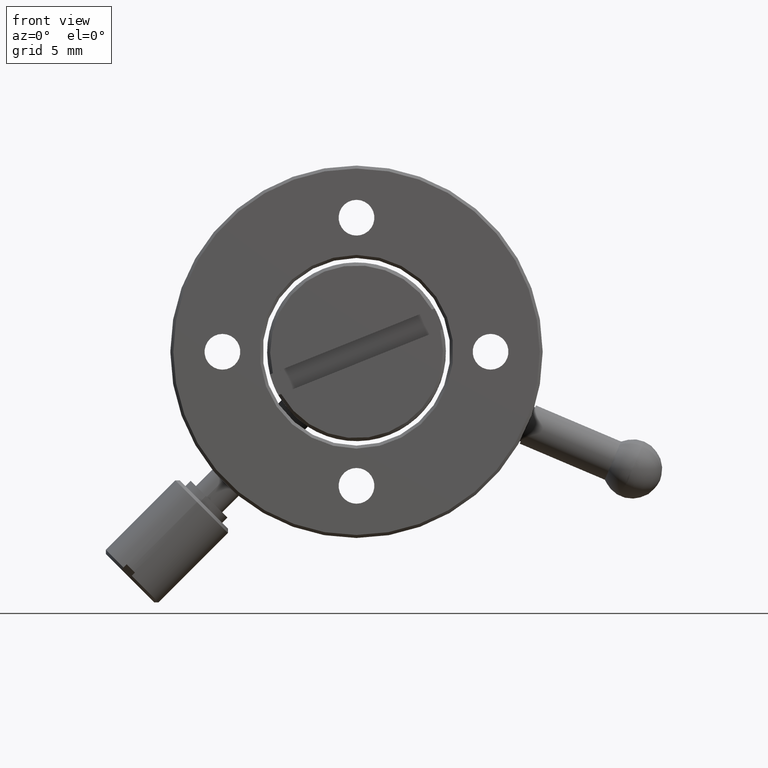
[diagram: clean part render]
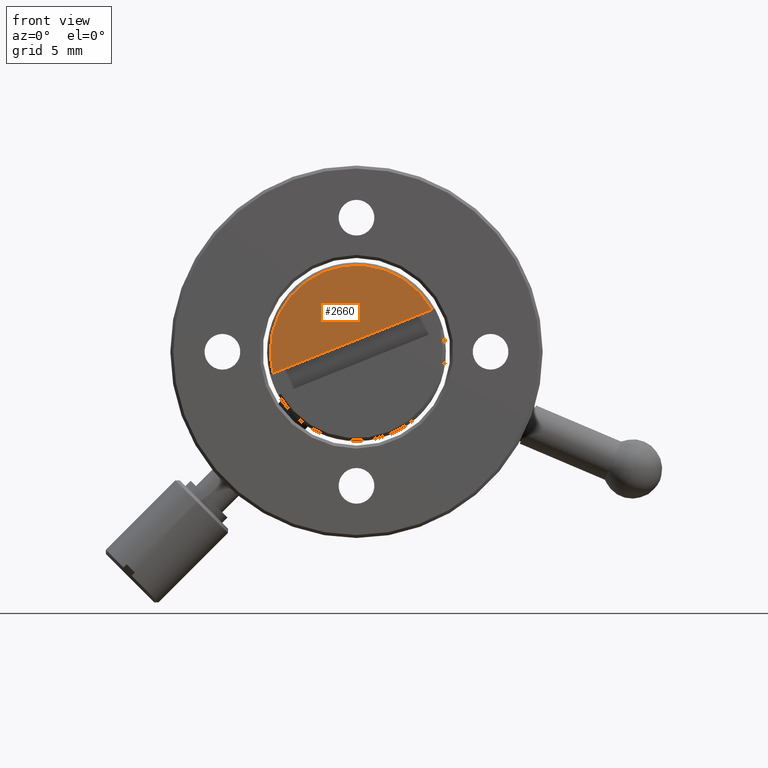
[diagram: same view with one face highlighted and labeled with its STEP entity id]
A machine part, front view. The second image highlights one B-rep face of the part: STEP entity #2660.
In plain terms, the highlighted planar face has unit normal (-0, -1, -0).
Its self-contained STEP definition (entity closure, byte-faithful):
#33 = CARTESIAN_POINT ( 'NONE',  ( -5.617716666808652448, 0.1200000000000029099, -1.442657080341798626 ) ) ;
#49 = CARTESIAN_POINT ( 'NONE',  ( -0.2789190076988375955, 0.1200000000000029099, 0.6962070002120758216 ) ) ;
#55 = ORIENTED_EDGE ( 'NONE', *, *, #59, .F. ) ;
#59 = EDGE_CURVE ( 'NONE', #3019, #3069, #765, .T. ) ;
#117 = DIRECTION ( 'NONE',  ( -6.441208679505482858E-18, -1.000000000000000000, -2.580519202940399182E-18 ) ) ;
#215 = EDGE_CURVE ( 'NONE', #3019, #3069, #1882, .T. ) ;
#482 = FACE_OUTER_BOUND ( 'NONE', #1506, .T. ) ;
#509 = PLANE ( 'NONE',  #2800 ) ;
#765 = LINE ( 'NONE', #49, #2081 ) ;
#1286 = CARTESIAN_POINT ( 'NONE',  ( -2.645885432985847718E-15, 0.1200000000000029099, -1.754753057999471259E-17 ) ) ;
#1349 = CARTESIAN_POINT ( 'NONE',  ( -2.645885432985847718E-15, 0.1200000000000029099, -1.754753057999471259E-17 ) ) ;
#1506 = EDGE_LOOP ( 'NONE', ( #55, #1762 ) ) ;
#1526 = DIRECTION ( 'NONE',  ( -0.9282760002827676882, 6.938893903907229918E-18, -0.3718920102651132598 ) ) ;
#1723 = DIRECTION ( 'NONE',  ( -6.441208679505482858E-18, -1.000000000000000000, -2.580519202940399182E-18 ) ) ;
#1734 = AXIS2_PLACEMENT_3D ( 'NONE', #1349, #117, #3053 ) ;
#1762 = ORIENTED_EDGE ( 'NONE', *, *, #215, .T. ) ;
#1882 = CIRCLE ( 'NONE', #1734, 5.799999999999999822 ) ;
#1941 = DIRECTION ( 'NONE',  ( -0.9282760002827676882, 6.938893903907229918E-18, -0.3718920102651132598 ) ) ;
#2081 = VECTOR ( 'NONE', #1526, 1000.000000000000114 ) ;
#2660 = ADVANCED_FACE ( 'NONE', ( #482 ), #509, .T. ) ;
#2676 = CARTESIAN_POINT ( 'NONE',  ( 5.059878651410977035, 0.1200000000000029099, 2.835071080765950491 ) ) ;
#2800 = AXIS2_PLACEMENT_3D ( 'NONE', #1286, #1723, #1941 ) ;
#3019 = VERTEX_POINT ( 'NONE', #2676 ) ;
#3053 = DIRECTION ( 'NONE',  ( -0.9282760002827676882, 7.009927839345934584E-18, -0.3718920102651133708 ) ) ;
#3069 = VERTEX_POINT ( 'NONE', #33 ) ;